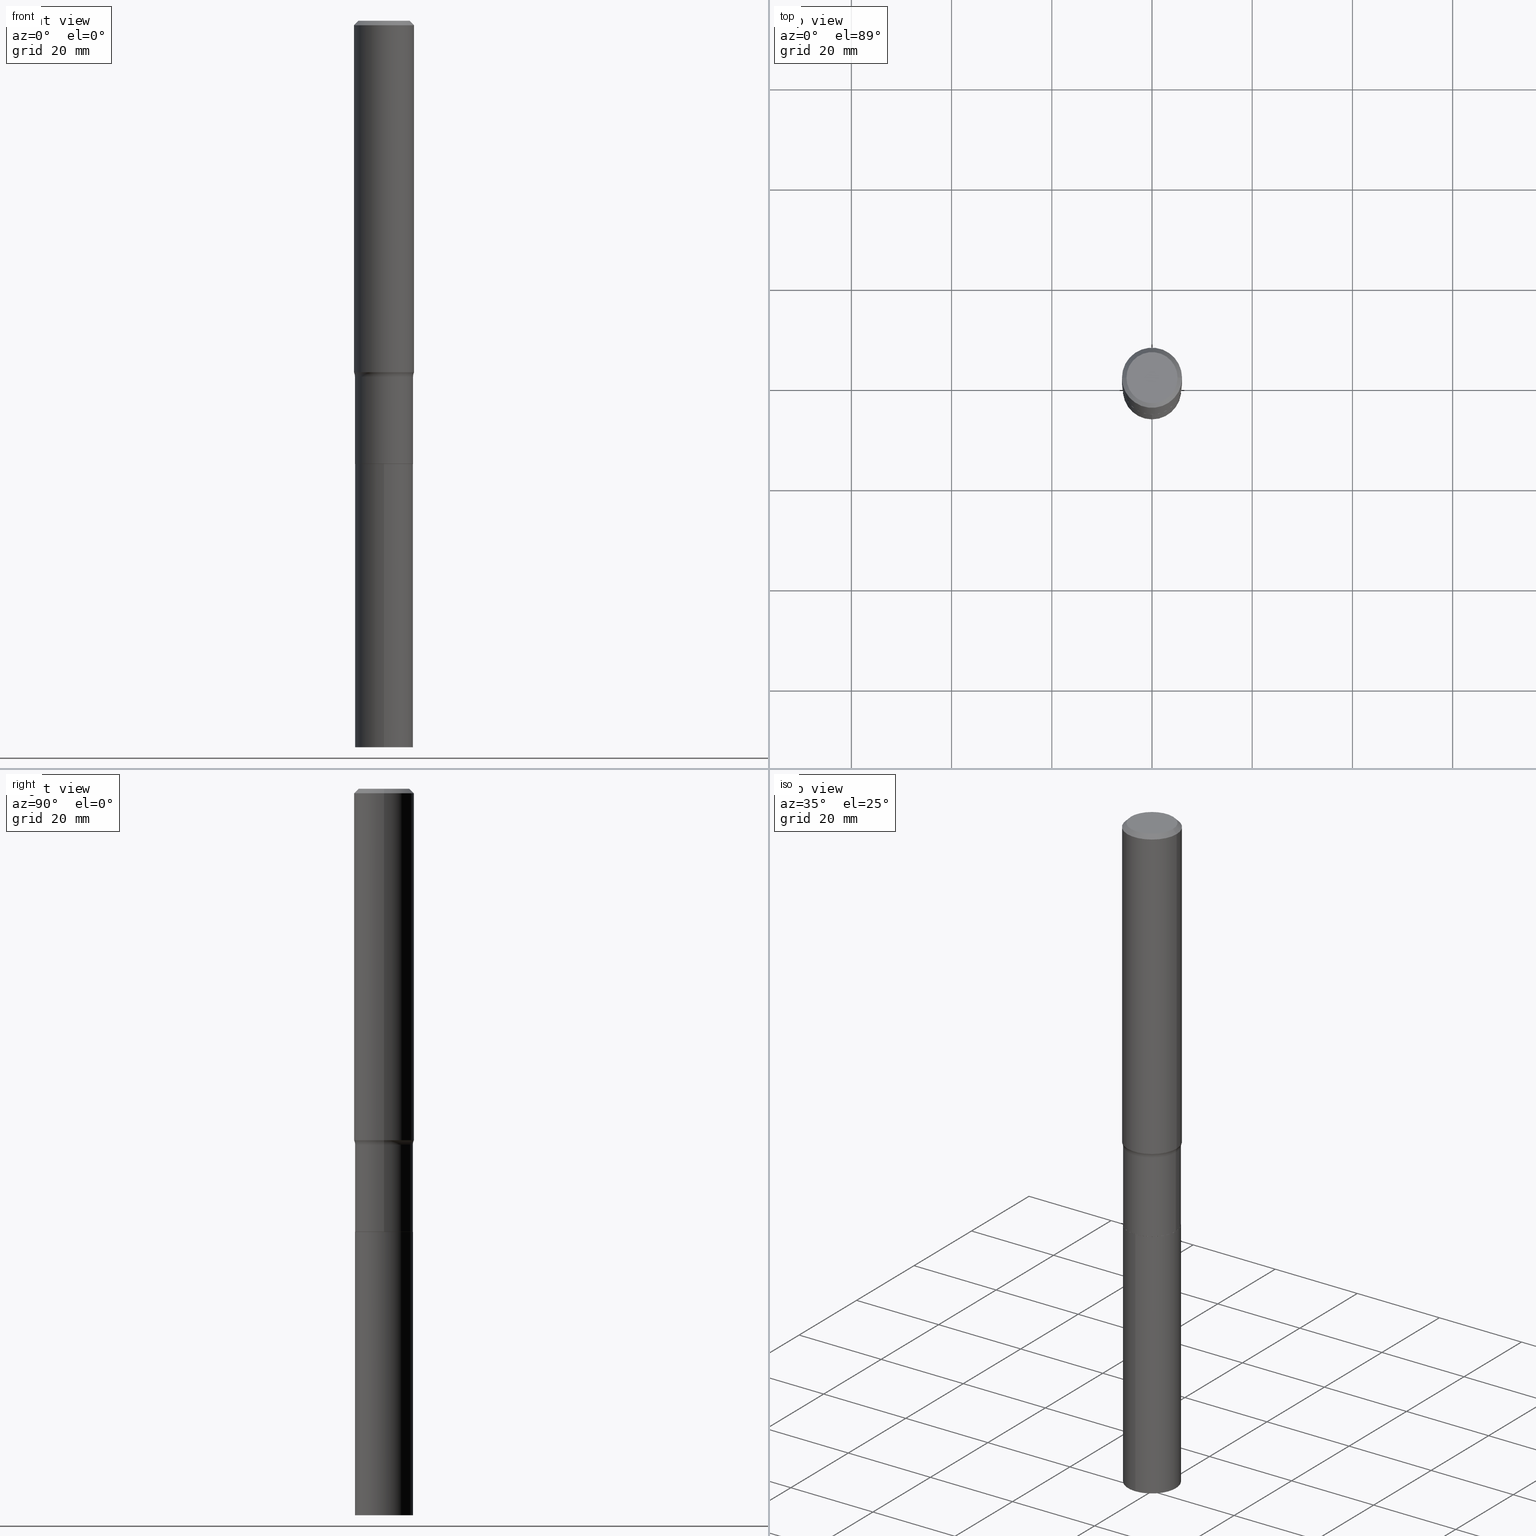
[diagram: canonical four-view strip — front | top / right | iso, engineering-drawing reading convention]
A machine part, canonical four-view strip (front | top / right | iso — engineering-drawing reading convention). The complete STEP part file that produces these views, byte-faithful:
ISO-10303-21;
HEADER;
FILE_DESCRIPTION (( 'STEP AP203' ),
    '1' );
FILE_NAME ('67904.STEP',
    '2024-04-19T17:00:27',
    ( '' ),
    ( '' ),
    'SwSTEP 2.0',
    'SolidWorks 2023',
    '' );
FILE_SCHEMA (( 'CONFIG_CONTROL_DESIGN' ));
ENDSEC;

DATA;
#1 = CARTESIAN_POINT ( 'NONE',  ( 0.000000000000000000, 0.000000000000000000, 0.000000000000000000 ) ) ;
#2 = EDGE_LOOP ( 'NONE', ( #446, #452, #16, #410 ) ) ;
#3 = CC_DESIGN_PERSON_AND_ORGANIZATION_ASSIGNMENT ( #417, #96, ( #459 ) ) ;
#4 = DIRECTION ( 'NONE',  ( -2.445468806185136597E-29, 3.491481338843145583E-15, 1.000000000000000000 ) ) ;
#5 = TOROIDAL_SURFACE ( 'NONE', #395, 0.3083499999999999575, 0.07999999999999998779 ) ;
#6 = CARTESIAN_POINT ( 'NONE',  ( 6.753505043533784872E-29, -9.642215337870128381E-15, -2.761640232929024830 ) ) ;
#7 = CARTESIAN_POINT ( 'NONE',  ( -1.594559527449519318E-15, -0.2283500000000199537, -5.708700000000000330 ) ) ;
#8 = PERSON ( 'UNSPECIFIED', 'UNSPECIFIED', 'UNSPECIFIED', ('UNSPECIFIED'), ('UNSPECIFIED'), ('UNSPECIFIED') ) ;
#9 = CARTESIAN_POINT ( 'NONE',  ( 6.838019875854878525E-29, -9.762880119673204678E-15, -2.796200000000000241 ) ) ;
#10 = ORIENTED_EDGE ( 'NONE', *, *, #171, .T. ) ;
#11 = EDGE_CURVE ( 'NONE', #209, #405, #154, .T. ) ;
#12 = CARTESIAN_POINT ( 'NONE',  ( 1.622524337108273756E-15, 0.2283499999999878405, -3.481700000000000905 ) ) ;
#13 = VECTOR ( 'NONE', #107, 39.37007874015748143 ) ;
#14 = PERSON_AND_ORGANIZATION ( #8, #310 ) ;
#15 = VECTOR ( 'NONE', #250, 39.37007874015748143 ) ;
#16 = ORIENTED_EDGE ( 'NONE', *, *, #415, .T. ) ;
#17 = DIRECTION ( 'NONE',  ( -2.445468806185136877E-29, 3.491481338843145188E-15, 1.000000000000000000 ) ) ;
#18 = ORIENTED_EDGE ( 'NONE', *, *, #354, .T. ) ;
#19 = LENGTH_MEASURE_WITH_UNIT ( LENGTH_MEASURE( 0.02539999999999999897 ), #455 );
#20 = MANIFOLD_SOLID_BREP ( 'Body-Move/Copy2[1]', #137 ) ;
#21 = ORIENTED_EDGE ( 'NONE', *, *, #329, .T. ) ;
#22 = CARTESIAN_POINT ( 'NONE',  ( 0.2283499999999999697, -1.594559527449658749E-15, 1.113474966753001794E-29 ) ) ;
#23 = APPROVAL_ROLE ( '' ) ;
#24 = EDGE_LOOP ( 'NONE', ( #427, #308, #195, #59 ) ) ;
#25 = AXIS2_PLACEMENT_3D ( 'NONE', #106, #254, #26 ) ;
#26 = DIRECTION ( 'NONE',  ( 1.000000000000000000, -6.982962677686266711E-15, 4.876140833081945105E-29 ) ) ;
#27 = COORDINATED_UNIVERSAL_TIME_OFFSET ( 5, 0, .BEHIND. ) ;
#28 = DIRECTION ( 'NONE',  ( 1.000000000000000000, -6.982962677686262766E-15, 0.000000000000000000 ) ) ;
#29 = DIRECTION ( 'NONE',  ( 1.000000000000000000, -6.982962677686264344E-15, 0.000000000000000000 ) ) ;
#30 = CARTESIAN_POINT ( 'NONE',  ( 0.2362000000000002153, -1.649375784469497708E-15, 1.151752954443001069E-29 ) ) ;
#31 = ORIENTED_EDGE ( 'NONE', *, *, #371, .F. ) ;
#32 = EDGE_CURVE ( 'NONE', #370, #163, #235, .T. ) ;
#33 =( NAMED_UNIT ( * ) SI_UNIT ( $, .STERADIAN. ) SOLID_ANGLE_UNIT ( ) );
#34 = CARTESIAN_POINT ( 'NONE',  ( -5.115777726706451290E-29, -4.725006018720570719E-14, -5.708700000000000330 ) ) ;
#35 = VECTOR ( 'NONE', #330, 39.37007874015748143 ) ;
#36 = FACE_OUTER_BOUND ( 'NONE', #83, .T. ) ;
#37 = VECTOR ( 'NONE', #143, 39.37007874015748143 ) ;
#38 = EDGE_CURVE ( 'NONE', #405, #209, #269, .T. ) ;
#39 = CARTESIAN_POINT ( 'NONE',  ( 0.2283499999999999142, -1.135743964712286205E-14, -2.796200000000000241 ) ) ;
#40 = AXIS2_PLACEMENT_3D ( 'NONE', #34, #189, #420 ) ;
#41 = CONICAL_SURFACE ( 'NONE', #155, 0.2278499999999999970, 0.7853981633972775267 ) ;
#42 = DIRECTION ( 'NONE',  ( -2.445468806185136597E-29, 3.491481338843145583E-15, 1.000000000000000000 ) ) ;
#43 = DIRECTION ( 'NONE',  ( 1.000000000000000000, -6.982962677686269077E-15, 0.000000000000000000 ) ) ;
#44 = ORIENTED_EDGE ( 'NONE', *, *, #426, .F. ) ;
#45 = CARTESIAN_POINT ( 'NONE',  ( -0.3083499999999999575, -7.571921593956934873E-15, -2.796200000000000241 ) ) ;
#46 = PERSON_AND_ORGANIZATION_ROLE ( 'classification_officer' ) ;
#47 = VERTEX_POINT ( 'NONE', #319 ) ;
#48 = DIRECTION ( 'NONE',  ( -2.445459217107233481E-29, 3.491495070948478760E-15, 1.000000000000000000 ) ) ;
#49 = ADVANCED_FACE ( 'NONE', ( #65 ), #325, .F. ) ;
#50 = AXIS2_PLACEMENT_3D ( 'NONE', #1, #393, #460 ) ;
#51 = AXIS2_PLACEMENT_3D ( 'NONE', #434, #42, #440 ) ;
#52 = VERTEX_POINT ( 'NONE', #259 ) ;
#53 = PRODUCT ( '67904', '67904', '', ( #127 ) ) ;
#54 = DIRECTION ( 'NONE',  ( -1.000000000000000000, 6.982962677686266711E-15, 0.000000000000000000 ) ) ;
#55 = ORIENTED_EDGE ( 'NONE', *, *, #57, .F. ) ;
#56 = CARTESIAN_POINT ( 'NONE',  ( 0.2278499999999999970, -1.374735862356099746E-14, -3.481700000000000017 ) ) ;
#57 = EDGE_CURVE ( 'NONE', #370, #180, #324, .T. ) ;
#58 = CALENDAR_DATE ( 2024, 19, 4 ) ;
#59 = ORIENTED_EDGE ( 'NONE', *, *, #32, .F. ) ;
#60 = DIRECTION ( 'NONE',  ( -2.445468806185136597E-29, 3.491481338843145583E-15, 1.000000000000000000 ) ) ;
#61 = AXIS2_PLACEMENT_3D ( 'NONE', #145, #355, #287 ) ;
#62 = EDGE_CURVE ( 'NONE', #443, #52, #221, .T. ) ;
#63 = DIRECTION ( 'NONE',  ( 0.7071067811865450192, -7.319954787623246579E-15, -0.7071067811865500152 ) ) ;
#64 = CARTESIAN_POINT ( 'NONE',  ( 8.514388742494790971E-29, -1.215629057745018152E-14, -3.481700000000000017 ) ) ;
#65 = FACE_OUTER_BOUND ( 'NONE', #425, .T. ) ;
#66 = DIRECTION ( 'NONE',  ( -2.445468806185136597E-29, 3.491481338843145583E-15, 1.000000000000000000 ) ) ;
#67 = CONICAL_SURFACE ( 'NONE', #61, 0.2278499999999999970, 0.7853981633972775267 ) ;
#68 = ADVANCED_FACE ( 'NONE', ( #251 ), #253, .T. ) ;
#69 = DIRECTION ( 'NONE',  ( -6.982962677686266711E-15, -1.000000000000000000, 3.491481338843145583E-15 ) ) ;
#70 = EDGE_CURVE ( 'NONE', #449, #226, #217, .T. ) ;
#71 = ORIENTED_EDGE ( 'NONE', *, *, #415, .F. ) ;
#72 = AXIS2_PLACEMENT_3D ( 'NONE', #391, #66, #284 ) ;
#73 = CONICAL_SURFACE ( 'NONE', #117, 0.2361999999999999933, 0.7853981633974447263 ) ;
#74 = LOCAL_TIME ( 13, 0, 27.00000000000000000, #27 ) ;
#75 = EDGE_CURVE ( 'NONE', #52, #449, #309, .T. ) ;
#76 = DIRECTION ( 'NONE',  ( 2.445459217107233481E-29, -3.491495070948478760E-15, -1.000000000000000000 ) ) ;
#77 = CARTESIAN_POINT ( 'NONE',  ( 0.000000000000000000, 0.000000000000000000, 0.000000000000000000 ) ) ;
#78 = EDGE_LOOP ( 'NONE', ( #233, #244, #403, #316 ) ) ;
#79 = CARTESIAN_POINT ( 'NONE',  ( 1.396042641899260512E-28, -1.993185010045244784E-14, -5.708700000000001218 ) ) ;
#80 = AXIS2_PLACEMENT_3D ( 'NONE', #79, #365, #201 ) ;
#81 = CARTESIAN_POINT ( 'NONE',  ( -0.2283499999999999142, -9.336188141118792014E-15, -2.796200000000000241 ) ) ;
#82 = ADVANCED_FACE ( 'NONE', ( #255 ), #390, .T. ) ;
#83 = EDGE_LOOP ( 'NONE', ( #276, #224, #374, #342 ) ) ;
#84 = DIRECTION ( 'NONE',  ( -2.445468806185136597E-29, 3.491481338843145583E-15, 1.000000000000000000 ) ) ;
#85 = PERSON_AND_ORGANIZATION_ROLE ( 'design_supplier' ) ;
#86 = EDGE_LOOP ( 'NONE', ( #298, #345, #21, #10 ) ) ;
#87 = ADVANCED_FACE ( 'NONE', ( #36 ), #341, .F. ) ;
#88 = DIRECTION ( 'NONE',  ( -6.982962677686265922E-15, -1.000000000000000000, 2.392684907960817401E-15 ) ) ;
#89 = COORDINATED_UNIVERSAL_TIME_OFFSET ( 5, 0, .BEHIND. ) ;
#90 = ORIENTED_EDGE ( 'NONE', *, *, #156, .F. ) ;
#91 = FACE_OUTER_BOUND ( 'NONE', #116, .T. ) ;
#92 = AXIS2_PLACEMENT_3D ( 'NONE', #150, #69, #28 ) ;
#93 = VECTOR ( 'NONE', #17, 39.37007874015748143 ) ;
#94 = ORIENTED_EDGE ( 'NONE', *, *, #326, .F. ) ;
#95 = CYLINDRICAL_SURFACE ( 'NONE', #411, 0.2362000000000002153 ) ;
#96 = PERSON_AND_ORGANIZATION_ROLE ( 'creator' ) ;
#97 = ORIENTED_EDGE ( 'NONE', *, *, #378, .T. ) ;
#98 = DIRECTION ( 'NONE',  ( 1.000000000000000000, -6.982962677686264344E-15, 0.000000000000000000 ) ) ;
#99 = CARTESIAN_POINT ( 'NONE',  ( -5.008488096090115757E-47, 7.150793614331959538E-33, 2.048068690724057264E-18 ) ) ;
#100 = LINE ( 'NONE', #22, #93 ) ;
#101 = CALENDAR_DATE ( 2024, 19, 4 ) ;
#102 = ADVANCED_FACE ( 'NONE', ( #183 ), #191, .T. ) ;
#103 = CLOSED_SHELL ( 'NONE', ( #430, #467, #360, #174, #181, #82, #87, #102, #333, #49, #185, #367 ) ) ;
#104 = FACE_OUTER_BOUND ( 'NONE', #169, .T. ) ;
#105 = APPROVAL_PERSON_ORGANIZATION ( #275, #441, #407 ) ;
#106 = CARTESIAN_POINT ( 'NONE',  ( -1.001697619218023151E-46, 1.430158722866391908E-32, 4.096137381448114529E-18 ) ) ;
#107 = DIRECTION ( 'NONE',  ( 0.7071067811864267805, -2.468850131080992517E-15, 0.7071067811866682540 ) ) ;
#108 = APPROVAL ( #462, 'UNSPECIFIED' ) ;
#109 = DATE_AND_TIME ( #101, #368 ) ;
#110 = DIRECTION ( 'NONE',  ( -1.000000000000000000, 6.982962677686265922E-15, -4.876176775795935793E-29 ) ) ;
#111 = CC_DESIGN_APPROVAL ( #441, ( #459 ) ) ;
#112 = CARTESIAN_POINT ( 'NONE',  ( 8.514388742494790971E-29, -1.215629057745018152E-14, -3.481700000000000017 ) ) ;
#113 = AXIS2_PLACEMENT_3D ( 'NONE', #64, #220, #88 ) ;
#114 = AXIS2_PLACEMENT_3D ( 'NONE', #314, #381, #457 ) ;
#115 = APPROVAL_ROLE ( '' ) ;
#116 = EDGE_LOOP ( 'NONE', ( #90, #172, #165, #249 ) ) ;
#117 = AXIS2_PLACEMENT_3D ( 'NONE', #184, #283, #252 ) ;
#118 = ADVANCED_BREP_SHAPE_REPRESENTATION ( '67904', ( #20, #202, #194 ), #386 ) ;
#119 = DIRECTION ( 'NONE',  ( -6.982962677686265922E-15, -1.000000000000000000, 4.785369815921634803E-15 ) ) ;
#120 = ORIENTED_EDGE ( 'NONE', *, *, #57, .T. ) ;
#121 = PLANE ( 'NONE',  #429 ) ;
#122 = FACE_OUTER_BOUND ( 'NONE', #290, .T. ) ;
#123 = ORIENTED_EDGE ( 'NONE', *, *, #156, .T. ) ;
#124 = AXIS2_PLACEMENT_3D ( 'NONE', #152, #423, #356 ) ;
#125 = AXIS2_PLACEMENT_3D ( 'NONE', #246, #379, #54 ) ;
#126 = DIRECTION ( 'NONE',  ( 1.000000000000000000, -6.982962677686265922E-15, 4.876176775795935793E-29 ) ) ;
#127 = MECHANICAL_CONTEXT ( 'NONE', #237, 'mechanical' ) ;
#128 = CC_DESIGN_PERSON_AND_ORGANIZATION_ASSIGNMENT ( #177, #85, ( #159 ) ) ;
#129 = EDGE_LOOP ( 'NONE', ( #313, #240, #328, #397 ) ) ;
#130 = CARTESIAN_POINT ( 'NONE',  ( 1.396042641899260512E-28, -1.993185010045244784E-14, -5.708700000000001218 ) ) ;
#131 = EDGE_LOOP ( 'NONE', ( #439, #18, #140, #380 ) ) ;
#132 = CARTESIAN_POINT ( 'NONE',  ( -1.594559527449573552E-15, -0.2283500000000121544, -3.481699999999999573 ) ) ;
#133 = DATE_AND_TIME ( #321, #363 ) ;
#134 = ADVANCED_FACE ( 'NONE', ( #144 ), #286, .F. ) ;
#135 = ORIENTED_EDGE ( 'NONE', *, *, #292, .F. ) ;
#136 = FACE_OUTER_BOUND ( 'NONE', #273, .T. ) ;
#137 = CLOSED_SHELL ( 'NONE', ( #141, #134, #68, #301 ) ) ;
#138 = CIRCLE ( 'NONE', #332, 0.2007700000000000040 ) ;
#139 = DATE_TIME_ROLE ( 'creation_date' ) ;
#140 = ORIENTED_EDGE ( 'NONE', *, *, #75, .F. ) ;
#141 = ADVANCED_FACE ( 'NONE', ( #104 ), #388, .T. ) ;
#142 = DIRECTION ( 'NONE',  ( -2.445468806185136597E-29, 3.491481338843145583E-15, 1.000000000000000000 ) ) ;
#143 = DIRECTION ( 'NONE',  ( -0.7071067811865450192, 2.468850131082230634E-15, -0.7071067811865500152 ) ) ;
#144 = FACE_OUTER_BOUND ( 'NONE', #213, .T. ) ;
#145 = CARTESIAN_POINT ( 'NONE',  ( 8.514388742494790971E-29, -1.215629057745018152E-14, -3.481700000000000017 ) ) ;
#146 = APPROVAL_DATE_TIME ( #109, #108 ) ;
#147 = AXIS2_PLACEMENT_3D ( 'NONE', #322, #142, #357 ) ;
#148 = CIRCLE ( 'NONE', #80, 0.2283499999999999974 ) ;
#149 = VERTEX_POINT ( 'NONE', #7 ) ;
#150 = CARTESIAN_POINT ( 'NONE',  ( 0.3083499999999999575, -1.191607666133776528E-14, -2.796200000000000241 ) ) ;
#151 = PERSON_AND_ORGANIZATION ( #8, #310 ) ;
#152 = CARTESIAN_POINT ( 'NONE',  ( 8.514388742494790971E-29, -1.215629057745018152E-14, -3.481700000000000017 ) ) ;
#153 = EDGE_CURVE ( 'NONE', #364, #226, #394, .T. ) ;
#154 = CIRCLE ( 'NONE', #124, 0.2283499999999999974 ) ;
#155 = AXIS2_PLACEMENT_3D ( 'NONE', #208, #344, #98 ) ;
#156 = EDGE_CURVE ( 'NONE', #204, #173, #138, .T. ) ;
#157 = CYLINDRICAL_SURFACE ( 'NONE', #280, 0.2283499999999999697 ) ;
#158 = LOCAL_TIME ( 13, 0, 27.00000000000000000, #168 ) ;
#159 = PRODUCT_DEFINITION_FORMATION_WITH_SPECIFIED_SOURCE ( 'ANY', '', #53, .NOT_KNOWN. ) ;
#160 = DIRECTION ( 'NONE',  ( -2.445468806185136597E-29, 3.491481338843145583E-15, 1.000000000000000000 ) ) ;
#161 = UNCERTAINTY_MEASURE_WITH_UNIT (LENGTH_MEASURE( 1.000000000000000082E-05 ), #182, 'distance_accuracy_value', 'NONE');
#162 = DIRECTION ( 'NONE',  ( -1.000000000000000000, 7.105427357601001859E-15, 0.000000000000000000 ) ) ;
#163 = VERTEX_POINT ( 'NONE', #39 ) ;
#164 = DIRECTION ( 'NONE',  ( 1.000000000000000000, -6.982962677686266711E-15, 4.876176775795935793E-29 ) ) ;
#165 = ORIENTED_EDGE ( 'NONE', *, *, #295, .T. ) ;
#166 = CIRCLE ( 'NONE', #392, 0.2283499999999999142 ) ;
#167 = DIRECTION ( 'NONE',  ( 1.000000000000000000, -6.982962677686269077E-15, 0.000000000000000000 ) ) ;
#168 = COORDINATED_UNIVERSAL_TIME_OFFSET ( 5, 0, .BEHIND. ) ;
#169 = EDGE_LOOP ( 'NONE', ( #242, #306, #361, #71 ) ) ;
#170 = CARTESIAN_POINT ( 'NONE',  ( -0.2362000000000003264, -7.963913396004768831E-15, -2.761640232929024830 ) ) ;
#171 = EDGE_CURVE ( 'NONE', #315, #180, #229, .T. ) ;
#172 = ORIENTED_EDGE ( 'NONE', *, *, #335, .T. ) ;
#173 = VERTEX_POINT ( 'NONE', #303 ) ;
#174 = ADVANCED_FACE ( 'NONE', ( #243 ), #5, .F. ) ;
#175 = LINE ( 'NONE', #409, #15 ) ;
#176 = CONICAL_SURFACE ( 'NONE', #125, 0.2361999999999999933, 0.7853981633974447263 ) ;
#177 = PERSON_AND_ORGANIZATION ( #8, #310 ) ;
#178 = COORDINATED_UNIVERSAL_TIME_OFFSET ( 5, 0, .BEHIND. ) ;
#179 = APPROVAL_PERSON_ORGANIZATION ( #216, #350, #23 ) ;
#180 = VERTEX_POINT ( 'NONE', #438 ) ;
#181 = ADVANCED_FACE ( 'NONE', ( #338 ), #157, .T. ) ;
#182 =( CONVERSION_BASED_UNIT ( 'INCH', #19 ) LENGTH_UNIT ( ) NAMED_UNIT ( #297 ) );
#183 = FACE_OUTER_BOUND ( 'NONE', #210, .T. ) ;
#184 = CARTESIAN_POINT ( 'NONE',  ( 8.664295980313998742E-31, -1.237031838352134818E-16, -0.03543000000000023908 ) ) ;
#185 = ADVANCED_FACE ( 'NONE', ( #122 ), #121, .F. ) ;
#186 = DIRECTION ( 'NONE',  ( 2.438088387897960049E-29, -3.491481338843145188E-15, -1.000000000000000000 ) ) ;
#187 = APPLICATION_PROTOCOL_DEFINITION ( 'international standard', 'config_control_design', 1994, #237 ) ;
#188 = AXIS2_PLACEMENT_3D ( 'NONE', #352, #248, #29 ) ;
#189 = DIRECTION ( 'NONE',  ( -2.445459217107233481E-29, 3.491495070948478760E-15, 1.000000000000000000 ) ) ;
#190 = SHAPE_DEFINITION_REPRESENTATION ( #238, #118 ) ;
#191 = CYLINDRICAL_SURFACE ( 'NONE', #50, 0.2362000000000002153 ) ;
#192 = DIRECTION ( 'NONE',  ( 1.000000000000000000, -6.982962677686265133E-15, 0.000000000000000000 ) ) ;
#193 = VECTOR ( 'NONE', #418, 39.37007874015748143 ) ;
#194 = AXIS2_PLACEMENT_3D ( 'NONE', #77, #400, #442 ) ;
#195 = ORIENTED_EDGE ( 'NONE', *, *, #260, .T. ) ;
#196 = CC_DESIGN_PERSON_AND_ORGANIZATION_ASSIGNMENT ( #14, #46, ( #300 ) ) ;
#197 = EDGE_LOOP ( 'NONE', ( #268, #247, #207, #55 ) ) ;
#198 = CARTESIAN_POINT ( 'NONE',  ( -1.001697619218023151E-46, 1.430158722866391908E-32, 4.096137381448114529E-18 ) ) ;
#199 = CIRCLE ( 'NONE', #453, 0.2362000000000003819 ) ;
#200 = CC_DESIGN_APPROVAL ( #350, ( #159 ) ) ;
#201 = DIRECTION ( 'NONE',  ( -6.982962677686265922E-15, -1.000000000000000000, 4.785369815921634803E-15 ) ) ;
#202 = MANIFOLD_SOLID_BREP ( 'Body-Move/Copy2[2]', #103 ) ;
#203 = LINE ( 'NONE', #422, #37 ) ;
#204 = VERTEX_POINT ( 'NONE', #307 ) ;
#205 = DIRECTION ( 'NONE',  ( 1.000000000000000000, -6.982962677686268288E-15, 4.883557194083113462E-29 ) ) ;
#206 = PERSON_AND_ORGANIZATION_ROLE ( 'creator' ) ;
#207 = ORIENTED_EDGE ( 'NONE', *, *, #295, .F. ) ;
#208 = CARTESIAN_POINT ( 'NONE',  ( 8.514388742494790971E-29, -1.215629057745018152E-14, -3.481700000000000017 ) ) ;
#209 = VERTEX_POINT ( 'NONE', #331 ) ;
#210 = EDGE_LOOP ( 'NONE', ( #337, #383, #120, #264 ) ) ;
#211 = FACE_OUTER_BOUND ( 'NONE', #86, .T. ) ;
#212 = SECURITY_CLASSIFICATION_LEVEL ( 'unclassified' ) ;
#213 = EDGE_LOOP ( 'NONE', ( #94, #135 ) ) ;
#214 = LINE ( 'NONE', #461, #230 ) ;
#215 = CIRCLE ( 'NONE', #288, 0.2361999999999999933 ) ;
#216 = PERSON_AND_ORGANIZATION ( #8, #310 ) ;
#217 = LINE ( 'NONE', #385, #193 ) ;
#218 = CC_DESIGN_PERSON_AND_ORGANIZATION_ASSIGNMENT ( #318, #206, ( #159 ) ) ;
#219 = CARTESIAN_POINT ( 'NONE',  ( 0.000000000000000000, 0.000000000000000000, 0.000000000000000000 ) ) ;
#220 = DIRECTION ( 'NONE',  ( -2.445459217107233481E-29, 3.491495070948479155E-15, 1.000000000000000000 ) ) ;
#221 = LINE ( 'NONE', #223, #13 ) ;
#222 = CIRCLE ( 'NONE', #25, 0.2007700000000000040 ) ;
#223 = CARTESIAN_POINT ( 'NONE',  ( 0.2278499999999999970, -1.374735862356099746E-14, -3.481700000000000017 ) ) ;
#224 = ORIENTED_EDGE ( 'NONE', *, *, #327, .F. ) ;
#225 = DATE_TIME_ROLE ( 'classification_date' ) ;
#226 = VERTEX_POINT ( 'NONE', #81 ) ;
#227 = EDGE_CURVE ( 'NONE', #163, #226, #166, .T. ) ;
#228 = AXIS2_PLACEMENT_3D ( 'NONE', #463, #353, #289 ) ;
#229 = CIRCLE ( 'NONE', #294, 0.2361999999999999933 ) ;
#230 = VECTOR ( 'NONE', #63, 39.37007874015748143 ) ;
#231 = EDGE_CURVE ( 'NONE', #47, #405, #234, .T. ) ;
#232 = CARTESIAN_POINT ( 'NONE',  ( -0.2361999999999999933, -3.204657318987311234E-15, -0.03543000000000023908 ) ) ;
#233 = ORIENTED_EDGE ( 'NONE', *, *, #70, .F. ) ;
#234 = LINE ( 'NONE', #12, #35 ) ;
#235 = CIRCLE ( 'NONE', #92, 0.07999999999999996003 ) ;
#236 = CIRCLE ( 'NONE', #51, 0.2283499999999999142 ) ;
#237 = APPLICATION_CONTEXT ( 'configuration controlled 3d designs of mechanical parts and assemblies' ) ;
#238 = PRODUCT_DEFINITION_SHAPE ( 'NONE', 'NONE',  #459 ) ;
#239 = DIRECTION ( 'NONE',  ( 6.982962677686265922E-15, 1.000000000000000000, -3.491495070948478760E-15 ) ) ;
#240 = ORIENTED_EDGE ( 'NONE', *, *, #70, .T. ) ;
#241 = CARTESIAN_POINT ( 'NONE',  ( 0.000000000000000000, 0.000000000000000000, 0.000000000000000000 ) ) ;
#242 = ORIENTED_EDGE ( 'NONE', *, *, #326, .T. ) ;
#243 = FACE_OUTER_BOUND ( 'NONE', #24, .T. ) ;
#244 = ORIENTED_EDGE ( 'NONE', *, *, #426, .T. ) ;
#245 = VECTOR ( 'NONE', #48, 39.37007874015748143 ) ;
#246 = CARTESIAN_POINT ( 'NONE',  ( 8.664295980313998742E-31, -1.237031838352134818E-16, -0.03543000000000023908 ) ) ;
#247 = ORIENTED_EDGE ( 'NONE', *, *, #454, .T. ) ;
#248 = DIRECTION ( 'NONE',  ( -2.445468806185136597E-29, 3.491481338843145583E-15, 1.000000000000000000 ) ) ;
#249 = ORIENTED_EDGE ( 'NONE', *, *, #329, .F. ) ;
#250 = DIRECTION ( 'NONE',  ( -2.445468806185136877E-29, 3.491481338843145188E-15, 1.000000000000000000 ) ) ;
#251 = FACE_OUTER_BOUND ( 'NONE', #2, .T. ) ;
#252 = DIRECTION ( 'NONE',  ( -1.000000000000000000, 6.982962677686266711E-15, 0.000000000000000000 ) ) ;
#253 = CYLINDRICAL_SURFACE ( 'NONE', #428, 0.2283499999999999974 ) ;
#254 = DIRECTION ( 'NONE',  ( -2.445468806185136597E-29, 3.491481338843145583E-15, 1.000000000000000000 ) ) ;
#255 = FACE_OUTER_BOUND ( 'NONE', #78, .T. ) ;
#256 = DIRECTION ( 'NONE',  ( -6.982962677686265922E-15, -1.000000000000000000, 2.392684907960817401E-15 ) ) ;
#257 = CC_DESIGN_DATE_AND_TIME_ASSIGNMENT ( #458, #139, ( #459 ) ) ;
#258 = AXIS2_PLACEMENT_3D ( 'NONE', #320, #384, #323 ) ;
#259 = CARTESIAN_POINT ( 'NONE',  ( 0.2283499999999999974, -1.374910436423041975E-14, -3.481199999999999850 ) ) ;
#260 = EDGE_CURVE ( 'NONE', #226, #163, #236, .T. ) ;
#261 = APPLICATION_CONTEXT ( 'configuration controlled 3d designs of mechanical parts and assemblies' ) ;
#262 = COORDINATED_UNIVERSAL_TIME_OFFSET ( 5, 0, .BEHIND. ) ;
#263 = AXIS2_PLACEMENT_3D ( 'NONE', #396, #76, #239 ) ;
#264 = ORIENTED_EDGE ( 'NONE', *, *, #171, .F. ) ;
#265 = FACE_OUTER_BOUND ( 'NONE', #377, .T. ) ;
#266 = CARTESIAN_POINT ( 'NONE',  ( 6.838019875854878525E-29, -9.762880119673204678E-15, -2.796200000000000241 ) ) ;
#267 = CARTESIAN_POINT ( 'NONE',  ( 6.753505043533784872E-29, -9.642215337870128381E-15, -2.761640232929024830 ) ) ;
#268 = ORIENTED_EDGE ( 'NONE', *, *, #327, .T. ) ;
#269 = CIRCLE ( 'NONE', #228, 0.2283499999999999974 ) ;
#270 = CIRCLE ( 'NONE', #188, 0.2278499999999999970 ) ;
#271 = DIRECTION ( 'NONE',  ( -2.445468806185136597E-29, 3.491481338843145583E-15, 1.000000000000000000 ) ) ;
#272 = EDGE_CURVE ( 'NONE', #364, #370, #343, .T. ) ;
#273 = EDGE_LOOP ( 'NONE', ( #349, #414, #347, #44 ) ) ;
#274 = DIRECTION ( 'NONE',  ( -2.445459217107233481E-29, 3.491495070948479155E-15, 1.000000000000000000 ) ) ;
#275 = PERSON_AND_ORGANIZATION ( #8, #310 ) ;
#276 = ORIENTED_EDGE ( 'NONE', *, *, #153, .F. ) ;
#277 = CARTESIAN_POINT ( 'NONE',  ( -0.2283499999999999974, -9.336188141118792014E-15, -3.481199999999999850 ) ) ;
#278 = DATE_AND_TIME ( #376, #158 ) ;
#279 = ORIENTED_EDGE ( 'NONE', *, *, #38, .T. ) ;
#280 = AXIS2_PLACEMENT_3D ( 'NONE', #241, #271, #164 ) ;
#281 = FACE_OUTER_BOUND ( 'NONE', #197, .T. ) ;
#282 = VERTEX_POINT ( 'NONE', #311 ) ;
#283 = DIRECTION ( 'NONE',  ( 2.445468806185136597E-29, -3.491481338843145583E-15, -1.000000000000000000 ) ) ;
#284 = DIRECTION ( 'NONE',  ( 1.000000000000000000, -6.982962677686270655E-15, 0.000000000000000000 ) ) ;
#285 = DIRECTION ( 'NONE',  ( -0.7071067811864267805, 7.493145998869918709E-15, 0.7071067811866682540 ) ) ;
#286 = PLANE ( 'NONE',  #40 ) ;
#287 = DIRECTION ( 'NONE',  ( 1.000000000000000000, -6.982962677686264344E-15, 0.000000000000000000 ) ) ;
#288 = AXIS2_PLACEMENT_3D ( 'NONE', #436, #4, #299 ) ;
#289 = DIRECTION ( 'NONE',  ( -6.982962677686265922E-15, -1.000000000000000000, 2.392684907960817401E-15 ) ) ;
#290 = EDGE_LOOP ( 'NONE', ( #31, #435 ) ) ;
#291 = DIRECTION ( 'NONE',  ( -2.445468806185136877E-29, 3.491481338843145188E-15, 1.000000000000000000 ) ) ;
#292 = EDGE_CURVE ( 'NONE', #47, #149, #465, .T. ) ;
#293 = LOCAL_TIME ( 13, 0, 27.00000000000000000, #178 ) ;
#294 = AXIS2_PLACEMENT_3D ( 'NONE', #401, #399, #304 ) ;
#295 = EDGE_CURVE ( 'NONE', #180, #315, #215, .T. ) ;
#296 = DESIGN_CONTEXT ( 'detailed design', #261, 'design' ) ;
#297 = DIMENSIONAL_EXPONENTS ( 1.000000000000000000, 0.000000000000000000, 0.000000000000000000, 0.000000000000000000, 0.000000000000000000, 0.000000000000000000, 0.000000000000000000 ) ;
#298 = ORIENTED_EDGE ( 'NONE', *, *, #335, .F. ) ;
#299 = DIRECTION ( 'NONE',  ( 1.000000000000000000, -6.982962677686266711E-15, 0.000000000000000000 ) ) ;
#300 = SECURITY_CLASSIFICATION ( '', '', #212 ) ;
#301 = ADVANCED_FACE ( 'NONE', ( #265 ), #334, .F. ) ;
#302 = VECTOR ( 'NONE', #285, 39.37007874015748143 ) ;
#303 = CARTESIAN_POINT ( 'NONE',  ( -0.2007700000000000040, 1.463821008716676943E-15, 4.096137381438094301E-18 ) ) ;
#304 = DIRECTION ( 'NONE',  ( 1.000000000000000000, -6.982962677686266711E-15, 0.000000000000000000 ) ) ;
#305 = PERSON_AND_ORGANIZATION_ROLE ( 'design_owner' ) ;
#306 = ORIENTED_EDGE ( 'NONE', *, *, #231, .T. ) ;
#307 = CARTESIAN_POINT ( 'NONE',  ( 0.2007700000000000040, -1.560767496960719869E-15, 4.096137381458473721E-18 ) ) ;
#308 = ORIENTED_EDGE ( 'NONE', *, *, #153, .T. ) ;
#309 = CIRCLE ( 'NONE', #72, 0.2283499999999999974 ) ;
#310 = ORGANIZATION ( 'UNSPECIFIED', 'UNSPECIFIED', '' ) ;
#311 = CARTESIAN_POINT ( 'NONE',  ( -0.2278499999999999970, -1.053466972684668207E-14, -3.481700000000000017 ) ) ;
#312 = APPROVAL_STATUS ( 'not_yet_approved' ) ;
#313 = ORIENTED_EDGE ( 'NONE', *, *, #75, .T. ) ;
#314 = CARTESIAN_POINT ( 'NONE',  ( 8.513166008091697049E-29, -1.215454483678075923E-14, -3.481199999999999850 ) ) ;
#315 = VERTEX_POINT ( 'NONE', #232 ) ;
#316 = ORIENTED_EDGE ( 'NONE', *, *, #260, .F. ) ;
#317 = AXIS2_PLACEMENT_3D ( 'NONE', #45, #404, #162 ) ;
#318 = PERSON_AND_ORGANIZATION ( #8, #310 ) ;
#319 = CARTESIAN_POINT ( 'NONE',  ( 1.622524337108300972E-15, 0.2283499999999800689, -5.708700000000002106 ) ) ;
#320 = CARTESIAN_POINT ( 'NONE',  ( 8.514388742494790971E-29, -1.215629057745018152E-14, -3.481700000000000017 ) ) ;
#321 = CALENDAR_DATE ( 2024, 19, 4 ) ;
#322 = CARTESIAN_POINT ( 'NONE',  ( 6.838019875854878525E-29, -9.762880119673204678E-15, -2.796200000000000241 ) ) ;
#323 = DIRECTION ( 'NONE',  ( 1.000000000000000000, -6.982962677686264344E-15, 0.000000000000000000 ) ) ;
#324 = LINE ( 'NONE', #30, #402 ) ;
#325 = PLANE ( 'NONE',  #464 ) ;
#326 = EDGE_CURVE ( 'NONE', #149, #47, #148, .T. ) ;
#327 = EDGE_CURVE ( 'NONE', #370, #364, #199, .T. ) ;
#328 = ORIENTED_EDGE ( 'NONE', *, *, #227, .F. ) ;
#329 = EDGE_CURVE ( 'NONE', #173, #315, #203, .T. ) ;
#330 = DIRECTION ( 'NONE',  ( -2.445459217107233481E-29, 3.491495070948478760E-15, 1.000000000000000000 ) ) ;
#331 = CARTESIAN_POINT ( 'NONE',  ( -1.594559527449573552E-15, -0.2283500000000121544, -3.481699999999999573 ) ) ;
#332 = AXIS2_PLACEMENT_3D ( 'NONE', #198, #84, #406 ) ;
#333 = ADVANCED_FACE ( 'NONE', ( #211 ), #73, .T. ) ;
#334 = PLANE ( 'NONE',  #263 ) ;
#335 = EDGE_CURVE ( 'NONE', #204, #180, #214, .T. ) ;
#336 = DIRECTION ( 'NONE',  ( -2.438088387897960049E-29, 3.491481338843145188E-15, 1.000000000000000000 ) ) ;
#337 = ORIENTED_EDGE ( 'NONE', *, *, #454, .F. ) ;
#338 = FACE_OUTER_BOUND ( 'NONE', #129, .T. ) ;
#339 = DATE_AND_TIME ( #382, #74 ) ;
#340 = APPLICATION_PROTOCOL_DEFINITION ( 'international standard', 'config_control_design', 1994, #261 ) ;
#341 = TOROIDAL_SURFACE ( 'NONE', #147, 0.3083499999999999575, 0.07999999999999998779 ) ;
#342 = ORIENTED_EDGE ( 'NONE', *, *, #227, .T. ) ;
#343 = CIRCLE ( 'NONE', #421, 0.2362000000000003819 ) ;
#344 = DIRECTION ( 'NONE',  ( -2.445468806185136597E-29, 3.491481338843145583E-15, 1.000000000000000000 ) ) ;
#345 = ORIENTED_EDGE ( 'NONE', *, *, #378, .F. ) ;
#346 = DIRECTION ( 'NONE',  ( 1.000000000000000000, -6.982962677686266711E-15, 4.876176775795935793E-29 ) ) ;
#347 = ORIENTED_EDGE ( 'NONE', *, *, #62, .T. ) ;
#348 = LINE ( 'NONE', #132, #245 ) ;
#349 = ORIENTED_EDGE ( 'NONE', *, *, #354, .F. ) ;
#350 = APPROVAL ( #448, 'UNSPECIFIED' ) ;
#351 = CIRCLE ( 'NONE', #114, 0.2283499999999999974 ) ;
#352 = CARTESIAN_POINT ( 'NONE',  ( 8.514388742494790971E-29, -1.215629057745018152E-14, -3.481700000000000017 ) ) ;
#353 = DIRECTION ( 'NONE',  ( -2.445459217107233481E-29, 3.491495070948479155E-15, 1.000000000000000000 ) ) ;
#354 = EDGE_CURVE ( 'NONE', #282, #449, #387, .T. ) ;
#355 = DIRECTION ( 'NONE',  ( -2.445468806185136597E-29, 3.491481338843145583E-15, 1.000000000000000000 ) ) ;
#356 = DIRECTION ( 'NONE',  ( -6.982962677686265922E-15, -1.000000000000000000, 2.392684907960817401E-15 ) ) ;
#357 = DIRECTION ( 'NONE',  ( 1.000000000000000000, -6.982962677686268288E-15, 4.883557194083113462E-29 ) ) ;
#358 = AXIS2_PLACEMENT_3D ( 'NONE', #130, #274, #119 ) ;
#359 = CARTESIAN_POINT ( 'NONE',  ( 0.000000000000000000, 0.000000000000000000, 0.000000000000000000 ) ) ;
#360 = ADVANCED_FACE ( 'NONE', ( #281 ), #95, .T. ) ;
#361 = ORIENTED_EDGE ( 'NONE', *, *, #11, .F. ) ;
#362 = CC_DESIGN_PERSON_AND_ORGANIZATION_ASSIGNMENT ( #373, #305, ( #53 ) ) ;
#363 = LOCAL_TIME ( 13, 0, 27.00000000000000000, #89 ) ;
#364 = VERTEX_POINT ( 'NONE', #170 ) ;
#365 = DIRECTION ( 'NONE',  ( -2.445459217107233481E-29, 3.491495070948479155E-15, 1.000000000000000000 ) ) ;
#366 = APPROVAL_PERSON_ORGANIZATION ( #151, #108, #115 ) ;
#367 = ADVANCED_FACE ( 'NONE', ( #136 ), #67, .T. ) ;
#368 = LOCAL_TIME ( 13, 0, 27.00000000000000000, #262 ) ;
#369 = DIRECTION ( 'NONE',  ( -2.445468806185136597E-29, 3.491481338843145583E-15, 1.000000000000000000 ) ) ;
#370 = VERTEX_POINT ( 'NONE', #447 ) ;
#371 = EDGE_CURVE ( 'NONE', #443, #282, #270, .T. ) ;
#372 = DIRECTION ( 'NONE',  ( -2.445468806185136597E-29, 3.491481338843145583E-15, 1.000000000000000000 ) ) ;
#373 = PERSON_AND_ORGANIZATION ( #8, #310 ) ;
#374 = ORIENTED_EDGE ( 'NONE', *, *, #32, .T. ) ;
#375 = DIRECTION ( 'NONE',  ( -2.445468806185136597E-29, 3.491481338843145583E-15, 1.000000000000000000 ) ) ;
#376 = CALENDAR_DATE ( 2024, 19, 4 ) ;
#377 = EDGE_LOOP ( 'NONE', ( #408, #279 ) ) ;
#378 = EDGE_CURVE ( 'NONE', #173, #204, #222, .T. ) ;
#379 = DIRECTION ( 'NONE',  ( 2.445468806185136597E-29, -3.491481338843145583E-15, -1.000000000000000000 ) ) ;
#380 = ORIENTED_EDGE ( 'NONE', *, *, #62, .F. ) ;
#381 = DIRECTION ( 'NONE',  ( -2.445468806185136597E-29, 3.491481338843145583E-15, 1.000000000000000000 ) ) ;
#382 = CALENDAR_DATE ( 2024, 19, 4 ) ;
#383 = ORIENTED_EDGE ( 'NONE', *, *, #272, .T. ) ;
#384 = DIRECTION ( 'NONE',  ( -2.445468806185136597E-29, 3.491481338843145583E-15, 1.000000000000000000 ) ) ;
#385 = CARTESIAN_POINT ( 'NONE',  ( -0.2283499999999999697, 1.622524337108188559E-15, -1.123238827859707655E-29 ) ) ;
#386 =( GEOMETRIC_REPRESENTATION_CONTEXT ( 3 ) GLOBAL_UNCERTAINTY_ASSIGNED_CONTEXT ( ( #161 ) ) GLOBAL_UNIT_ASSIGNED_CONTEXT ( ( #182, #424, #33 ) ) REPRESENTATION_CONTEXT ( 'NONE', 'WORKASPACE' ) );
#387 = LINE ( 'NONE', #450, #302 ) ;
#388 = CYLINDRICAL_SURFACE ( 'NONE', #113, 0.2283499999999999974 ) ;
#389 = PRODUCT_RELATED_PRODUCT_CATEGORY ( 'detail', '', ( #53 ) ) ;
#390 = CYLINDRICAL_SURFACE ( 'NONE', #451, 0.2283499999999999697 ) ;
#391 = CARTESIAN_POINT ( 'NONE',  ( 8.513166008091697049E-29, -1.215454483678075923E-14, -3.481199999999999850 ) ) ;
#392 = AXIS2_PLACEMENT_3D ( 'NONE', #266, #372, #192 ) ;
#393 = DIRECTION ( 'NONE',  ( -2.445468806185136597E-29, 3.491481338843145583E-15, 1.000000000000000000 ) ) ;
#394 = CIRCLE ( 'NONE', #317, 0.07999999999999996003 ) ;
#395 = AXIS2_PLACEMENT_3D ( 'NONE', #9, #375, #205 ) ;
#396 = CARTESIAN_POINT ( 'NONE',  ( 8.514388742494790971E-29, -1.215629057745018152E-14, -3.481700000000000017 ) ) ;
#397 = ORIENTED_EDGE ( 'NONE', *, *, #437, .F. ) ;
#398 = EDGE_CURVE ( 'NONE', #282, #443, #433, .T. ) ;
#399 = DIRECTION ( 'NONE',  ( -2.445468806185136597E-29, 3.491481338843145583E-15, 1.000000000000000000 ) ) ;
#400 = DIRECTION ( 'NONE',  ( 0.000000000000000000, 0.000000000000000000, 1.000000000000000000 ) ) ;
#401 = CARTESIAN_POINT ( 'NONE',  ( 8.664295980313998742E-31, -1.237031838352134818E-16, -0.03543000000000023908 ) ) ;
#402 = VECTOR ( 'NONE', #291, 39.37007874015748143 ) ;
#403 = ORIENTED_EDGE ( 'NONE', *, *, #437, .T. ) ;
#404 = DIRECTION ( 'NONE',  ( 7.105427357601001859E-15, 1.000000000000000000, -3.491481338843145583E-15 ) ) ;
#405 = VERTEX_POINT ( 'NONE', #412 ) ;
#406 = DIRECTION ( 'NONE',  ( 1.000000000000000000, -6.982962677686266711E-15, 4.876140833081945105E-29 ) ) ;
#407 = APPROVAL_ROLE ( '' ) ;
#408 = ORIENTED_EDGE ( 'NONE', *, *, #11, .T. ) ;
#409 = CARTESIAN_POINT ( 'NONE',  ( -0.2362000000000002153, 1.678301941865358169E-15, -1.161852468318209878E-29 ) ) ;
#410 = ORIENTED_EDGE ( 'NONE', *, *, #38, .F. ) ;
#411 = AXIS2_PLACEMENT_3D ( 'NONE', #219, #416, #346 ) ;
#412 = CARTESIAN_POINT ( 'NONE',  ( 1.622524337108328582E-15, 0.2283499999999878405, -3.481700000000000905 ) ) ;
#413 = APPROVAL_DATE_TIME ( #133, #441 ) ;
#414 = ORIENTED_EDGE ( 'NONE', *, *, #398, .T. ) ;
#415 = EDGE_CURVE ( 'NONE', #149, #209, #348, .T. ) ;
#416 = DIRECTION ( 'NONE',  ( -2.445468806185136597E-29, 3.491481338843145583E-15, 1.000000000000000000 ) ) ;
#417 = PERSON_AND_ORGANIZATION ( #8, #310 ) ;
#418 = DIRECTION ( 'NONE',  ( -2.445468806185136877E-29, 3.491481338843145188E-15, 1.000000000000000000 ) ) ;
#419 = FACE_OUTER_BOUND ( 'NONE', #131, .T. ) ;
#420 = DIRECTION ( 'NONE',  ( -6.982962677686265922E-15, -1.000000000000000000, 3.491495070948478760E-15 ) ) ;
#421 = AXIS2_PLACEMENT_3D ( 'NONE', #6, #160, #167 ) ;
#422 = CARTESIAN_POINT ( 'NONE',  ( -0.2361999999999999933, 1.525672600634282550E-15, -0.03543000000000023908 ) ) ;
#423 = DIRECTION ( 'NONE',  ( -2.445459217107233481E-29, 3.491495070948479155E-15, 1.000000000000000000 ) ) ;
#424 =( NAMED_UNIT ( * ) PLANE_ANGLE_UNIT ( ) SI_UNIT ( $, .RADIAN. ) );
#425 = EDGE_LOOP ( 'NONE', ( #97, #123 ) ) ;
#426 = EDGE_CURVE ( 'NONE', #449, #52, #351, .T. ) ;
#427 = ORIENTED_EDGE ( 'NONE', *, *, #272, .F. ) ;
#428 = AXIS2_PLACEMENT_3D ( 'NONE', #112, #468, #256 ) ;
#429 = AXIS2_PLACEMENT_3D ( 'NONE', #444, #336, #126 ) ;
#430 = ADVANCED_FACE ( 'NONE', ( #419 ), #41, .T. ) ;
#431 = CC_DESIGN_DATE_AND_TIME_ASSIGNMENT ( #278, #225, ( #300 ) ) ;
#432 = CC_DESIGN_APPROVAL ( #108, ( #300 ) ) ;
#433 = CIRCLE ( 'NONE', #258, 0.2278499999999999970 ) ;
#434 = CARTESIAN_POINT ( 'NONE',  ( 6.838019875854878525E-29, -9.762880119673204678E-15, -2.796200000000000241 ) ) ;
#435 = ORIENTED_EDGE ( 'NONE', *, *, #398, .F. ) ;
#436 = CARTESIAN_POINT ( 'NONE',  ( 8.664295980313998742E-31, -1.237031838352134818E-16, -0.03543000000000023908 ) ) ;
#437 = EDGE_CURVE ( 'NONE', #52, #163, #100, .T. ) ;
#438 = CARTESIAN_POINT ( 'NONE',  ( 0.2361999999999999933, -1.773078968304709711E-15, -0.03543000000000023908 ) ) ;
#439 = ORIENTED_EDGE ( 'NONE', *, *, #371, .T. ) ;
#440 = DIRECTION ( 'NONE',  ( 1.000000000000000000, -6.982962677686265133E-15, 0.000000000000000000 ) ) ;
#441 = APPROVAL ( #312, 'UNSPECIFIED' ) ;
#442 = DIRECTION ( 'NONE',  ( 1.000000000000000000, 0.000000000000000000, 0.000000000000000000 ) ) ;
#443 = VERTEX_POINT ( 'NONE', #56 ) ;
#444 = CARTESIAN_POINT ( 'NONE',  ( 8.514388742494790971E-29, -1.215629057745018152E-14, -3.481700000000000017 ) ) ;
#445 = APPROVAL_DATE_TIME ( #339, #350 ) ;
#446 = ORIENTED_EDGE ( 'NONE', *, *, #231, .F. ) ;
#447 = CARTESIAN_POINT ( 'NONE',  ( 0.2362000000000003264, -1.129159112233962806E-14, -2.761640232929024830 ) ) ;
#448 = APPROVAL_STATUS ( 'not_yet_approved' ) ;
#449 = VERTEX_POINT ( 'NONE', #277 ) ;
#450 = CARTESIAN_POINT ( 'NONE',  ( -0.2278499999999999970, -1.053731895402079406E-14, -3.481700000000000017 ) ) ;
#451 = AXIS2_PLACEMENT_3D ( 'NONE', #359, #60, #456 ) ;
#452 = ORIENTED_EDGE ( 'NONE', *, *, #292, .T. ) ;
#453 = AXIS2_PLACEMENT_3D ( 'NONE', #267, #369, #43 ) ;
#454 = EDGE_CURVE ( 'NONE', #364, #315, #175, .T. ) ;
#455 =( LENGTH_UNIT ( ) NAMED_UNIT ( * ) SI_UNIT ( $, .METRE. ) );
#456 = DIRECTION ( 'NONE',  ( 1.000000000000000000, -6.982962677686266711E-15, 4.876176775795935793E-29 ) ) ;
#457 = DIRECTION ( 'NONE',  ( 1.000000000000000000, -6.982962677686270655E-15, 0.000000000000000000 ) ) ;
#458 = DATE_AND_TIME ( #58, #293 ) ;
#459 = PRODUCT_DEFINITION ( 'UNKNOWN', '', #159, #296 ) ;
#460 = DIRECTION ( 'NONE',  ( 1.000000000000000000, -6.982962677686266711E-15, 4.876176775795935793E-29 ) ) ;
#461 = CARTESIAN_POINT ( 'NONE',  ( 0.2361999999999999933, -1.744152810908849251E-15, -0.03543000000000023908 ) ) ;
#462 = APPROVAL_STATUS ( 'not_yet_approved' ) ;
#463 = CARTESIAN_POINT ( 'NONE',  ( 8.514388742494790971E-29, -1.215629057745018152E-14, -3.481700000000000017 ) ) ;
#464 = AXIS2_PLACEMENT_3D ( 'NONE', #99, #186, #110 ) ;
#465 = CIRCLE ( 'NONE', #358, 0.2283499999999999974 ) ;
#466 = CC_DESIGN_SECURITY_CLASSIFICATION ( #300, ( #159 ) ) ;
#467 = ADVANCED_FACE ( 'NONE', ( #91 ), #176, .T. ) ;
#468 = DIRECTION ( 'NONE',  ( -2.445459217107233481E-29, 3.491495070948479155E-15, 1.000000000000000000 ) ) ;
ENDSEC;
END-ISO-10303-21;
